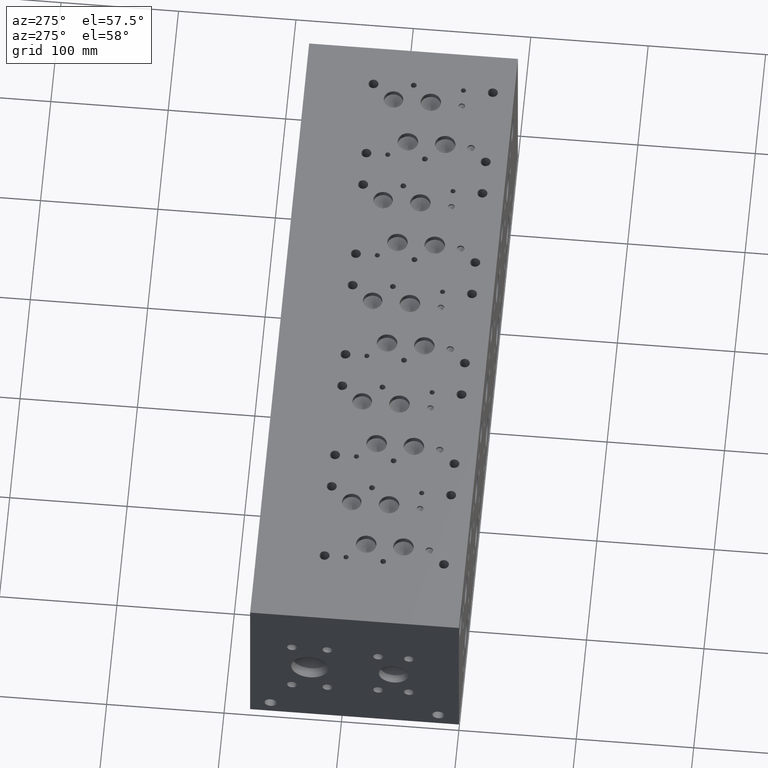
[diagram: clean part render]
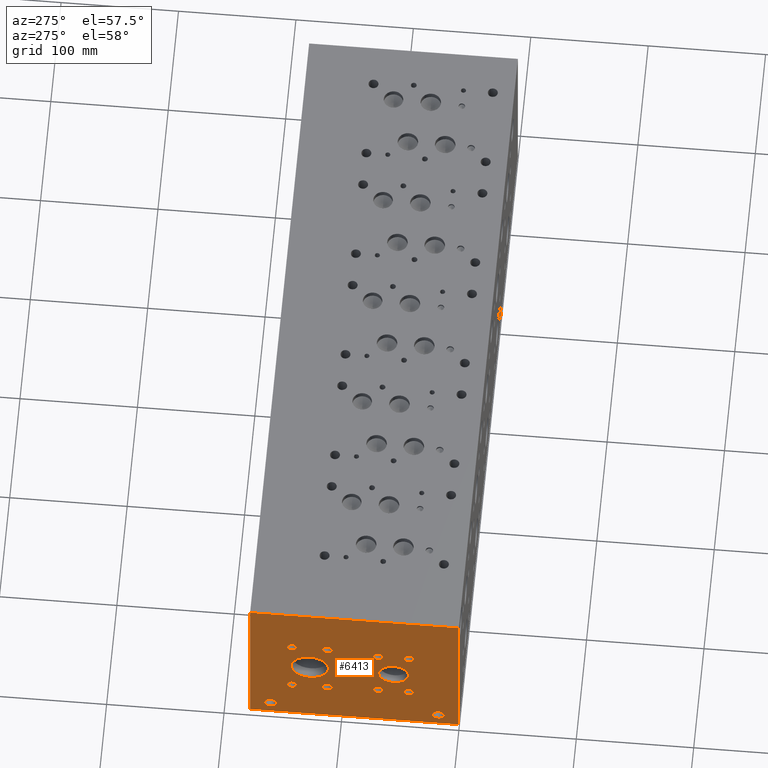
[diagram: same view with one face highlighted and labeled with its STEP entity id]
A machine part, auxiliary view. The second image highlights one B-rep face of the part: STEP entity #6413.
In plain terms, the highlighted planar face has unit normal (-1, 0, 0).
Its self-contained STEP definition (entity closure, byte-faithful):
#5472=CARTESIAN_POINT('',(0.0,160.32480000000004,17.856200000000001));
#5473=VERTEX_POINT('',#5472);
#5474=CARTESIAN_POINT('',(0.0,160.32480000000004,12.699999999999999));
#5475=DIRECTION('',(1.0,0.0,0.0));
#5476=DIRECTION('',(0.0,0.0,1.0));
#5477=AXIS2_PLACEMENT_3D('',#5474,#5475,#5476);
#5478=CIRCLE('',#5477,5.156200000000002);
#5479=EDGE_CURVE('',#5473,#5473,#5478,.T.);
#5509=CARTESIAN_POINT('',(0.0,17.475200000000001,17.856200000000001));
#5510=VERTEX_POINT('',#5509);
#5511=CARTESIAN_POINT('',(0.0,17.475200000000001,12.699999999999999));
#5512=DIRECTION('',(1.0,0.0,0.0));
#5513=DIRECTION('',(0.0,0.0,1.0));
#5514=AXIS2_PLACEMENT_3D('',#5511,#5512,#5513);
#5515=CIRCLE('',#5514,5.156200000000002);
#5516=EDGE_CURVE('',#5510,#5510,#5515,.T.);
#5620=CARTESIAN_POINT('',(0.0,142.08760000000001,47.917099999999991));
#5621=VERTEX_POINT('',#5620);
#5622=CARTESIAN_POINT('',(0.0,142.08760000000001,43.662599999999998));
#5623=DIRECTION('',(1.0,0.0,0.0));
#5624=DIRECTION('',(0.0,0.0,1.0));
#5625=AXIS2_PLACEMENT_3D('',#5622,#5623,#5624);
#5626=CIRCLE('',#5625,4.254499999999997);
#5627=EDGE_CURVE('',#5621,#5621,#5626,.T.);
#5657=CARTESIAN_POINT('',(0.0,111.91240000000001,47.917099999999991));
#5658=VERTEX_POINT('',#5657);
#5659=CARTESIAN_POINT('',(0.0,111.91240000000001,43.662599999999998));
#5660=DIRECTION('',(1.0,0.0,0.0));
#5661=DIRECTION('',(0.0,0.0,1.0));
#5662=AXIS2_PLACEMENT_3D('',#5659,#5660,#5661);
#5663=CIRCLE('',#5662,4.254499999999997);
#5664=EDGE_CURVE('',#5658,#5658,#5663,.T.);
#5694=CARTESIAN_POINT('',(0.0,111.91240000000001,106.64189999999999));
#5695=VERTEX_POINT('',#5694);
#5696=CARTESIAN_POINT('',(0.0,111.91240000000001,102.3874));
#5697=DIRECTION('',(1.0,0.0,0.0));
#5698=DIRECTION('',(0.0,0.0,1.0));
#5699=AXIS2_PLACEMENT_3D('',#5696,#5697,#5698);
#5700=CIRCLE('',#5699,4.254499999999997);
#5701=EDGE_CURVE('',#5695,#5695,#5700,.T.);
#5731=CARTESIAN_POINT('',(0.0,142.08760000000001,106.64189999999999));
#5732=VERTEX_POINT('',#5731);
#5733=CARTESIAN_POINT('',(0.0,142.08760000000001,102.3874));
#5734=DIRECTION('',(1.0,0.0,0.0));
#5735=DIRECTION('',(0.0,0.0,1.0));
#5736=AXIS2_PLACEMENT_3D('',#5733,#5734,#5735);
#5737=CIRCLE('',#5736,4.254499999999997);
#5738=EDGE_CURVE('',#5732,#5732,#5737,.T.);
#5768=CARTESIAN_POINT('',(0.0,127.00000000000001,88.900000000000006));
#5769=VERTEX_POINT('',#5768);
#5770=CARTESIAN_POINT('',(0.0,127.00000000000001,73.025000000000006));
#5771=DIRECTION('',(1.0,0.0,0.0));
#5772=DIRECTION('',(0.0,0.0,1.0));
#5773=AXIS2_PLACEMENT_3D('',#5770,#5771,#5772);
#5774=CIRCLE('',#5773,15.874999999999995);
#5775=EDGE_CURVE('',#5769,#5769,#5774,.T.);
#5990=CARTESIAN_POINT('',(0.0,68.656199999999998,49.517299999999992));
#5991=VERTEX_POINT('',#5990);
#5992=CARTESIAN_POINT('',(0.0,68.656199999999998,45.262799999999999));
#5993=DIRECTION('',(1.0,0.0,0.0));
#5994=DIRECTION('',(0.0,0.0,1.0));
#5995=AXIS2_PLACEMENT_3D('',#5992,#5993,#5994);
#5996=CIRCLE('',#5995,4.254499999999997);
#5997=EDGE_CURVE('',#5991,#5991,#5996,.T.);
#6027=CARTESIAN_POINT('',(0.0,42.494199999999999,49.517299999999992));
#6028=VERTEX_POINT('',#6027);
#6029=CARTESIAN_POINT('',(0.0,42.494199999999999,45.262799999999999));
#6030=DIRECTION('',(1.0,0.0,0.0));
#6031=DIRECTION('',(0.0,0.0,1.0));
#6032=AXIS2_PLACEMENT_3D('',#6029,#6030,#6031);
#6033=CIRCLE('',#6032,4.254499999999997);
#6034=EDGE_CURVE('',#6028,#6028,#6033,.T.);
#6064=CARTESIAN_POINT('',(0.0,42.494199999999999,101.89210000000001));
#6065=VERTEX_POINT('',#6064);
#6066=CARTESIAN_POINT('',(0.0,42.494199999999999,97.63760000000002));
#6067=DIRECTION('',(1.0,0.0,0.0));
#6068=DIRECTION('',(0.0,0.0,1.0));
#6069=AXIS2_PLACEMENT_3D('',#6066,#6067,#6068);
#6070=CIRCLE('',#6069,4.254499999999997);
#6071=EDGE_CURVE('',#6065,#6065,#6070,.T.);
#6101=CARTESIAN_POINT('',(0.0,68.656199999999998,101.89210000000001));
#6102=VERTEX_POINT('',#6101);
#6103=CARTESIAN_POINT('',(0.0,68.656199999999998,97.63760000000002));
#6104=DIRECTION('',(1.0,0.0,0.0));
#6105=DIRECTION('',(0.0,0.0,1.0));
#6106=AXIS2_PLACEMENT_3D('',#6103,#6104,#6105);
#6107=CIRCLE('',#6106,4.254499999999997);
#6108=EDGE_CURVE('',#6102,#6102,#6107,.T.);
#6138=CARTESIAN_POINT('',(0.0,55.575200000000002,84.150199999999998));
#6139=VERTEX_POINT('',#6138);
#6140=CARTESIAN_POINT('',(0.0,55.575200000000002,71.450199999999995));
#6141=DIRECTION('',(1.0,0.0,0.0));
#6142=DIRECTION('',(0.0,0.0,1.0));
#6143=AXIS2_PLACEMENT_3D('',#6140,#6141,#6142);
#6144=CIRCLE('',#6143,12.700000000000005);
#6145=EDGE_CURVE('',#6139,#6139,#6144,.T.);
#6338=CARTESIAN_POINT('',(0.0,0.0,0.0));
#6339=DIRECTION('',(-1.0,0.0,0.0));
#6340=DIRECTION('',(0.0,0.0,1.0));
#6341=AXIS2_PLACEMENT_3D('',#6338,#6339,#6340);
#6342=PLANE('',#6341);
#6343=CARTESIAN_POINT('',(0.0,0.0,152.40000000000003));
#6344=VERTEX_POINT('',#6343);
#6345=CARTESIAN_POINT('',(0.0,177.80000000000001,152.40000000000003));
#6346=VERTEX_POINT('',#6345);
#6347=CARTESIAN_POINT('',(0.0,0.0,152.40000000000003));
#6348=DIRECTION('',(0.0,1.0,0.0));
#6349=VECTOR('',#6348,177.80000000000001);
#6350=LINE('',#6347,#6349);
#6351=EDGE_CURVE('',#6344,#6346,#6350,.T.);
#6352=ORIENTED_EDGE('',*,*,#6351,.T.);
#6353=CARTESIAN_POINT('',(0.0,177.80000000000001,0.0));
#6354=VERTEX_POINT('',#6353);
#6355=CARTESIAN_POINT('',(0.0,177.80000000000001,0.0));
#6356=DIRECTION('',(0.0,0.0,1.0));
#6357=VECTOR('',#6356,152.40000000000003);
#6358=LINE('',#6355,#6357);
#6359=EDGE_CURVE('',#6354,#6346,#6358,.T.);
#6360=ORIENTED_EDGE('',*,*,#6359,.F.);
#6361=CARTESIAN_POINT('',(0.0,0.0,0.0));
#6362=VERTEX_POINT('',#6361);
#6363=CARTESIAN_POINT('',(0.0,177.80000000000001,0.0));
#6364=DIRECTION('',(0.0,-1.0,0.0));
#6365=VECTOR('',#6364,177.80000000000001);
#6366=LINE('',#6363,#6365);
#6367=EDGE_CURVE('',#6354,#6362,#6366,.T.);
#6368=ORIENTED_EDGE('',*,*,#6367,.T.);
#6369=CARTESIAN_POINT('',(0.0,0.0,0.0));
#6370=DIRECTION('',(0.0,0.0,1.0));
#6371=VECTOR('',#6370,152.40000000000003);
#6372=LINE('',#6369,#6371);
#6373=EDGE_CURVE('',#6362,#6344,#6372,.T.);
#6374=ORIENTED_EDGE('',*,*,#6373,.T.);
#6375=EDGE_LOOP('',(#6352,#6360,#6368,#6374));
#6376=FACE_OUTER_BOUND('',#6375,.T.);
#6377=ORIENTED_EDGE('',*,*,#5479,.T.);
#6378=EDGE_LOOP('',(#6377));
#6379=FACE_BOUND('',#6378,.T.);
#6380=ORIENTED_EDGE('',*,*,#5516,.T.);
#6381=EDGE_LOOP('',(#6380));
#6382=FACE_BOUND('',#6381,.T.);
#6383=ORIENTED_EDGE('',*,*,#5627,.T.);
#6384=EDGE_LOOP('',(#6383));
#6385=FACE_BOUND('',#6384,.T.);
#6386=ORIENTED_EDGE('',*,*,#5664,.T.);
#6387=EDGE_LOOP('',(#6386));
#6388=FACE_BOUND('',#6387,.T.);
#6389=ORIENTED_EDGE('',*,*,#5701,.T.);
#6390=EDGE_LOOP('',(#6389));
#6391=FACE_BOUND('',#6390,.T.);
#6392=ORIENTED_EDGE('',*,*,#5738,.T.);
#6393=EDGE_LOOP('',(#6392));
#6394=FACE_BOUND('',#6393,.T.);
#6395=ORIENTED_EDGE('',*,*,#5775,.T.);
#6396=EDGE_LOOP('',(#6395));
#6397=FACE_BOUND('',#6396,.T.);
#6398=ORIENTED_EDGE('',*,*,#5997,.T.);
#6399=EDGE_LOOP('',(#6398));
#6400=FACE_BOUND('',#6399,.T.);
#6401=ORIENTED_EDGE('',*,*,#6034,.T.);
#6402=EDGE_LOOP('',(#6401));
#6403=FACE_BOUND('',#6402,.T.);
#6404=ORIENTED_EDGE('',*,*,#6071,.T.);
#6405=EDGE_LOOP('',(#6404));
#6406=FACE_BOUND('',#6405,.T.);
#6407=ORIENTED_EDGE('',*,*,#6108,.T.);
#6408=EDGE_LOOP('',(#6407));
#6409=FACE_BOUND('',#6408,.T.);
#6410=ORIENTED_EDGE('',*,*,#6145,.T.);
#6411=EDGE_LOOP('',(#6410));
#6412=FACE_BOUND('',#6411,.T.);
#6413=ADVANCED_FACE('',(#6376,#6379,#6382,#6385,#6388,#6391,#6394,#6397,#6400,#6403,#6406,#6409,#6412),#6342,.T.);